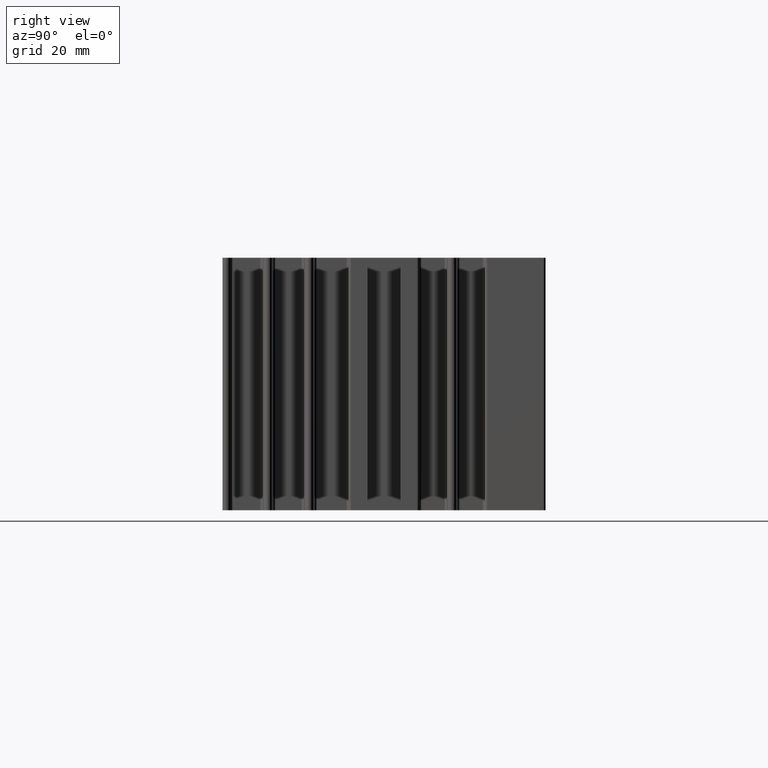
[diagram: clean part render]
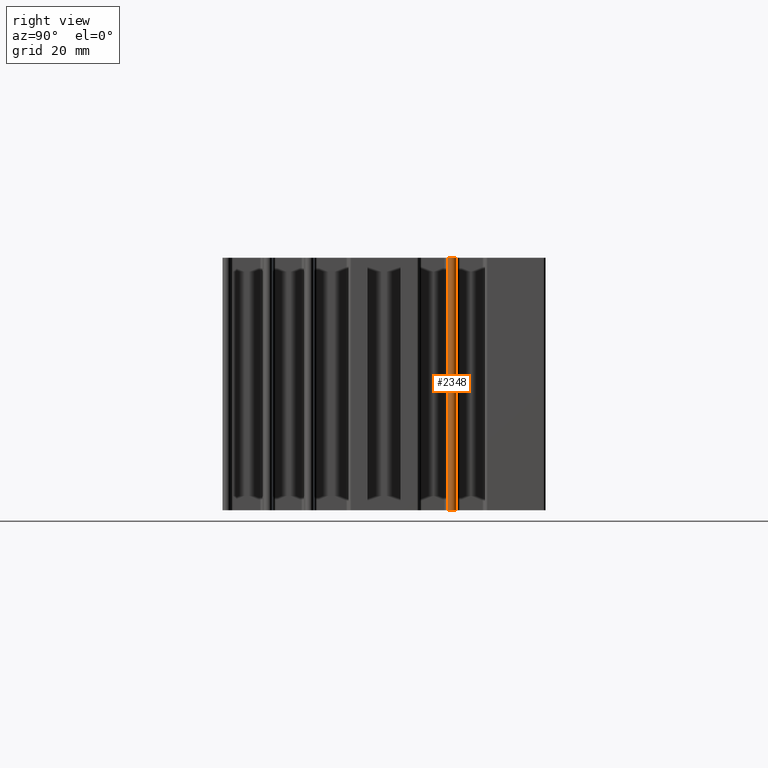
[diagram: same view with one face highlighted and labeled with its STEP entity id]
A machine part, right view. The second image highlights one B-rep face of the part: STEP entity #2348.
In plain terms, the highlighted cylindrical surface (edge-blend (fillet) strip) has radius 0.8 mm, axis along (0, 0, -1).
Its self-contained STEP definition (entity closure, byte-faithful):
#118 = VECTOR ( 'NONE', #7894, 1000.000000000000000 ) ;
#152 = DIRECTION ( 'NONE',  ( 0.0000000000000000000, 0.0000000000000000000, -1.000000000000000000 ) ) ;
#216 = AXIS2_PLACEMENT_3D ( 'NONE', #6162, #392, #2963 ) ;
#392 = DIRECTION ( 'NONE',  ( 0.0000000000000000000, 0.0000000000000000000, 1.000000000000000000 ) ) ;
#471 = VECTOR ( 'NONE', #7742, 1000.000000000000000 ) ;
#788 = FACE_OUTER_BOUND ( 'NONE', #7773, .T. ) ;
#875 = AXIS2_PLACEMENT_3D ( 'NONE', #5934, #152, #2731 ) ;
#1109 = DIRECTION ( 'NONE',  ( 1.000000000000000000, 0.0000000000000000000, 0.0000000000000000000 ) ) ;
#1830 = VERTEX_POINT ( 'NONE', #7707 ) ;
#2093 = VERTEX_POINT ( 'NONE', #6863 ) ;
#2261 = EDGE_CURVE ( 'NONE', #3580, #2093, #2597, .T. ) ;
#2348 = ADVANCED_FACE ( 'NONE', ( #788 ), #3362, .T. ) ;
#2597 = LINE ( 'NONE', #5167, #471 ) ;
#2731 = DIRECTION ( 'NONE',  ( -1.000000000000000000, 0.0000000000000000000, 0.0000000000000000000 ) ) ;
#2752 = LINE ( 'NONE', #5324, #118 ) ;
#2963 = DIRECTION ( 'NONE',  ( 1.000000000000000000, 0.0000000000000000000, 0.0000000000000000000 ) ) ;
#3362 = CYLINDRICAL_SURFACE ( 'NONE', #875, 0.8000003555324181059 ) ;
#3580 = VERTEX_POINT ( 'NONE', #6905 ) ;
#3850 = CIRCLE ( 'NONE', #216, 0.8000003555324181059 ) ;
#3901 = ORIENTED_EDGE ( 'NONE', *, *, #2261, .F. ) ;
#4311 = CARTESIAN_POINT ( 'NONE',  ( 59.20000047582420422, 13.47192001974249997, 50.00000000000000000 ) ) ;
#4330 = EDGE_CURVE ( 'NONE', #1830, #3580, #4466, .T. ) ;
#4466 = CIRCLE ( 'NONE', #4754, 0.8000003555324181059 ) ;
#4751 = ORIENTED_EDGE ( 'NONE', *, *, #7993, .T. ) ;
#4754 = AXIS2_PLACEMENT_3D ( 'NONE', #4311, #6877, #1109 ) ;
#5167 = CARTESIAN_POINT ( 'NONE',  ( 59.22102647582420332, 14.27164401974250119, 50.00000000000000000 ) ) ;
#5324 = CARTESIAN_POINT ( 'NONE',  ( 59.22102647582420332, 12.67219601974251830, 50.00000000000000000 ) ) ;
#5920 = ORIENTED_EDGE ( 'NONE', *, *, #6980, .T. ) ;
#5934 = CARTESIAN_POINT ( 'NONE',  ( 59.20000047582420422, 13.47192001974249997, 50.00000000000000000 ) ) ;
#6162 = CARTESIAN_POINT ( 'NONE',  ( 59.20000047582420422, 13.47192001974249997, 0.0000000000000000000 ) ) ;
#6863 = CARTESIAN_POINT ( 'NONE',  ( 59.22102647582420332, 14.27164401974250119, 0.0000000000000000000 ) ) ;
#6877 = DIRECTION ( 'NONE',  ( 0.0000000000000000000, 0.0000000000000000000, 1.000000000000000000 ) ) ;
#6905 = CARTESIAN_POINT ( 'NONE',  ( 59.22102647582420332, 14.27164401974250119, 50.00000000000000000 ) ) ;
#6980 = EDGE_CURVE ( 'NONE', #7313, #2093, #3850, .T. ) ;
#7313 = VERTEX_POINT ( 'NONE', #7920 ) ;
#7707 = CARTESIAN_POINT ( 'NONE',  ( 59.22102647582420332, 12.67219601974251830, 50.00000000000000000 ) ) ;
#7720 = ORIENTED_EDGE ( 'NONE', *, *, #4330, .F. ) ;
#7742 = DIRECTION ( 'NONE',  ( 0.0000000000000000000, 0.0000000000000000000, -1.000000000000000000 ) ) ;
#7773 = EDGE_LOOP ( 'NONE', ( #5920, #3901, #7720, #4751 ) ) ;
#7894 = DIRECTION ( 'NONE',  ( 0.0000000000000000000, 0.0000000000000000000, -1.000000000000000000 ) ) ;
#7920 = CARTESIAN_POINT ( 'NONE',  ( 59.22102647582420332, 12.67219601974251830, 0.0000000000000000000 ) ) ;
#7993 = EDGE_CURVE ( 'NONE', #1830, #7313, #2752, .T. ) ;